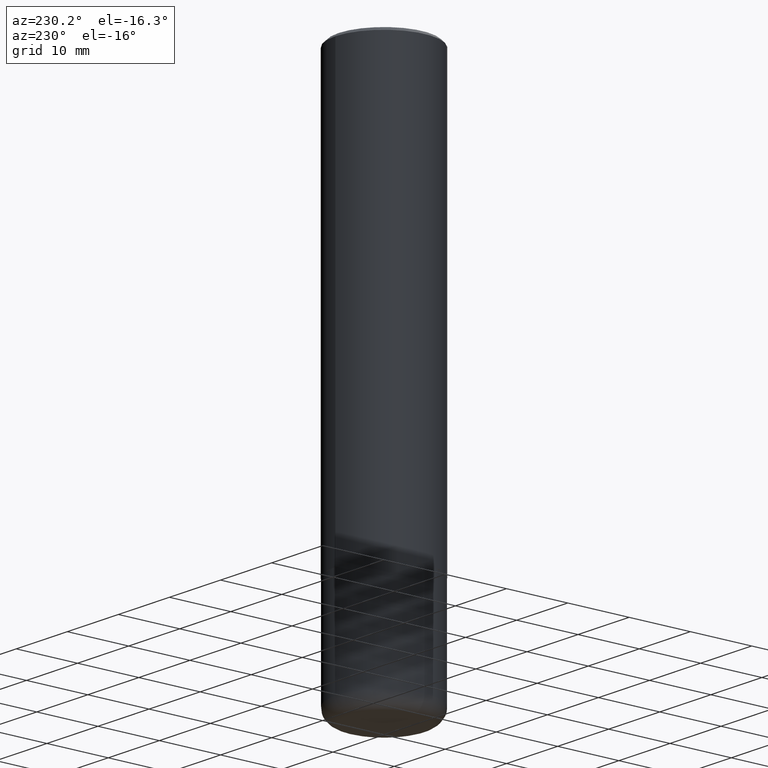
[diagram: clean part render]
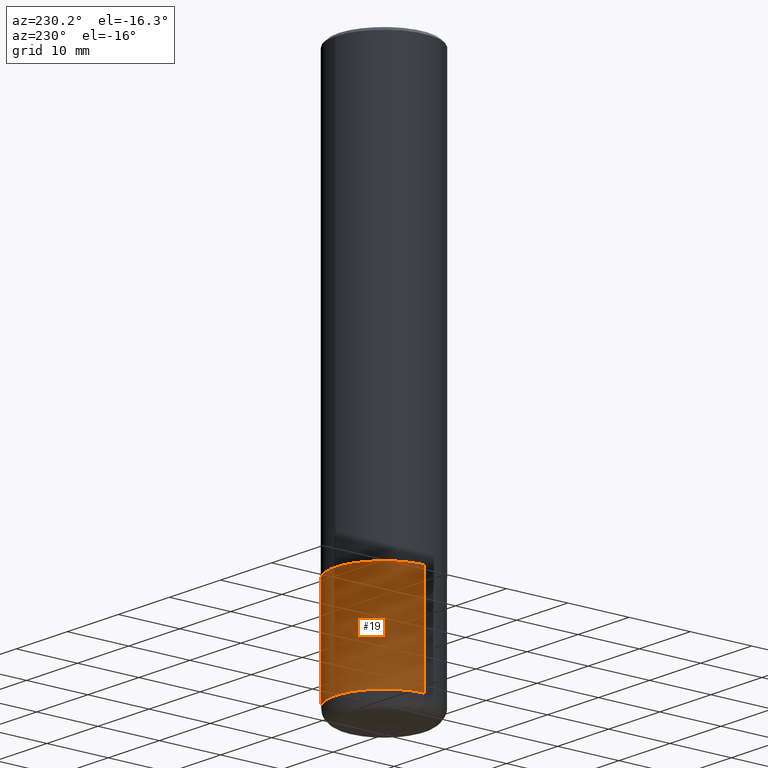
[diagram: same view with one face highlighted and labeled with its STEP entity id]
A machine part, auxiliary view. The second image highlights one B-rep face of the part: STEP entity #19.
In plain terms, the highlighted cylindrical surface (partial cylindrical patch) has radius 7.9375 mm, axis along (-0, 0, 1).
Its self-contained STEP definition (entity closure, byte-faithful):
#4 = VERTEX_POINT ( 'NONE', #186 ) ;
#6 = DIRECTION ( 'NONE',  ( -2.445468806185136877E-29, 3.491481338843145188E-15, 1.000000000000000000 ) ) ;
#13 = EDGE_CURVE ( 'NONE', #24, #306, #40, .T. ) ;
#19 = ADVANCED_FACE ( 'NONE', ( #285 ), #349, .T. ) ;
#24 = VERTEX_POINT ( 'NONE', #25 ) ;
#25 = CARTESIAN_POINT ( 'NONE',  ( 0.3125000000000000000, -1.178374951859560978E-14, -2.750000000000000000 ) ) ;
#27 = DIRECTION ( 'NONE',  ( -2.445468806185136597E-29, 3.491481338843145583E-15, 1.000000000000000000 ) ) ;
#40 = CIRCLE ( 'NONE', #271, 0.3125000000000000000 ) ;
#53 = AXIS2_PLACEMENT_3D ( 'NONE', #358, #27, #384 ) ;
#78 = ORIENTED_EDGE ( 'NONE', *, *, #307, .F. ) ;
#85 = ORIENTED_EDGE ( 'NONE', *, *, #213, .T. ) ;
#94 = DIRECTION ( 'NONE',  ( 1.000000000000000000, -6.982962677686269077E-15, 0.000000000000000000 ) ) ;
#96 = VECTOR ( 'NONE', #6, 39.37007874015748143 ) ;
#131 = CARTESIAN_POINT ( 'NONE',  ( 0.3125000000000000000, -2.182175836776958347E-15, 1.523805242436230075E-29 ) ) ;
#145 = ORIENTED_EDGE ( 'NONE', *, *, #13, .F. ) ;
#168 = DIRECTION ( 'NONE',  ( -2.445468806185136597E-29, 3.491481338843145583E-15, 1.000000000000000000 ) ) ;
#172 = AXIS2_PLACEMENT_3D ( 'NONE', #200, #168, #326 ) ;
#178 = ORIENTED_EDGE ( 'NONE', *, *, #263, .T. ) ;
#186 = CARTESIAN_POINT ( 'NONE',  ( 0.3124999999999998890, -1.408812720223208442E-14, -3.410000000000000142 ) ) ;
#187 = CARTESIAN_POINT ( 'NONE',  ( -0.3124999999999998890, -9.685505316204812997E-15, -3.410000000000000142 ) ) ;
#200 = CARTESIAN_POINT ( 'NONE',  ( 8.339048629091315302E-29, -1.190595136545512608E-14, -3.410000000000000142 ) ) ;
#213 = EDGE_CURVE ( 'NONE', #4, #310, #355, .T. ) ;
#231 = CARTESIAN_POINT ( 'NONE',  ( -0.3125000000000000000, -8.533316474386574888E-15, -2.750000000000000000 ) ) ;
#263 = EDGE_CURVE ( 'NONE', #310, #306, #297, .T. ) ;
#271 = AXIS2_PLACEMENT_3D ( 'NONE', #287, #393, #94 ) ;
#281 = VECTOR ( 'NONE', #395, 39.37007874015748143 ) ;
#285 = FACE_OUTER_BOUND ( 'NONE', #405, .T. ) ;
#287 = CARTESIAN_POINT ( 'NONE',  ( 6.725039217009124520E-29, -9.601573681818649859E-15, -2.750000000000000000 ) ) ;
#297 = LINE ( 'NONE', #304, #96 ) ;
#304 = CARTESIAN_POINT ( 'NONE',  ( -0.3125000000000000000, 2.220446049250313081E-15, -1.537167215704658232E-29 ) ) ;
#306 = VERTEX_POINT ( 'NONE', #231 ) ;
#307 = EDGE_CURVE ( 'NONE', #4, #24, #389, .T. ) ;
#310 = VERTEX_POINT ( 'NONE', #187 ) ;
#326 = DIRECTION ( 'NONE',  ( 1.000000000000000000, -6.982962677686269077E-15, 0.000000000000000000 ) ) ;
#349 = CYLINDRICAL_SURFACE ( 'NONE', #53, 0.3125000000000000000 ) ;
#355 = CIRCLE ( 'NONE', #172, 0.3125000000000000000 ) ;
#358 = CARTESIAN_POINT ( 'NONE',  ( 0.000000000000000000, 0.000000000000000000, 0.000000000000000000 ) ) ;
#384 = DIRECTION ( 'NONE',  ( 1.000000000000000000, -6.982962677686266711E-15, 4.876176775795936353E-29 ) ) ;
#389 = LINE ( 'NONE', #131, #281 ) ;
#393 = DIRECTION ( 'NONE',  ( -2.445468806185136597E-29, 3.491481338843145583E-15, 1.000000000000000000 ) ) ;
#395 = DIRECTION ( 'NONE',  ( -2.445468806185136877E-29, 3.491481338843145188E-15, 1.000000000000000000 ) ) ;
#405 = EDGE_LOOP ( 'NONE', ( #85, #178, #145, #78 ) ) ;